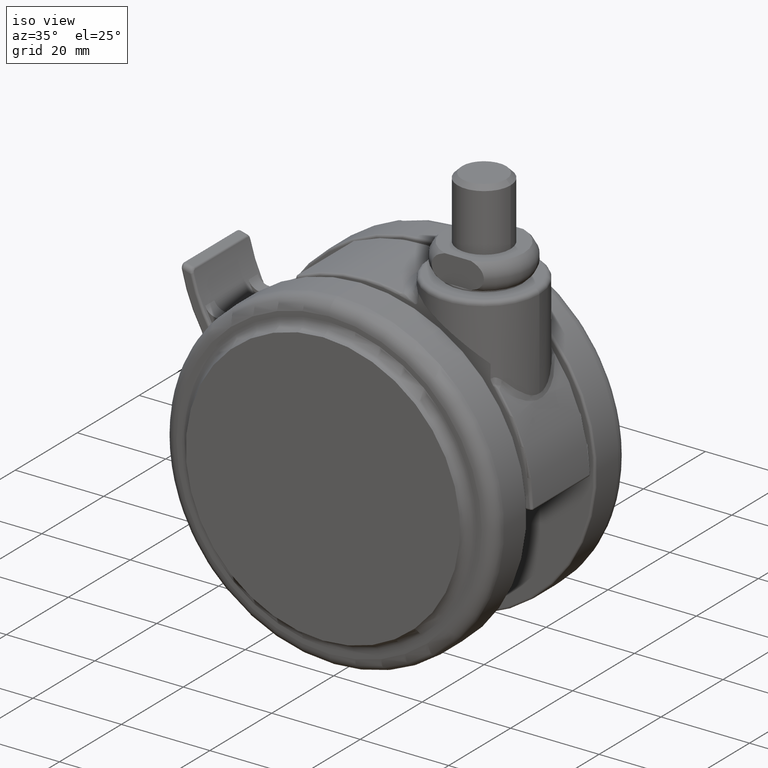
[diagram: clean part render]
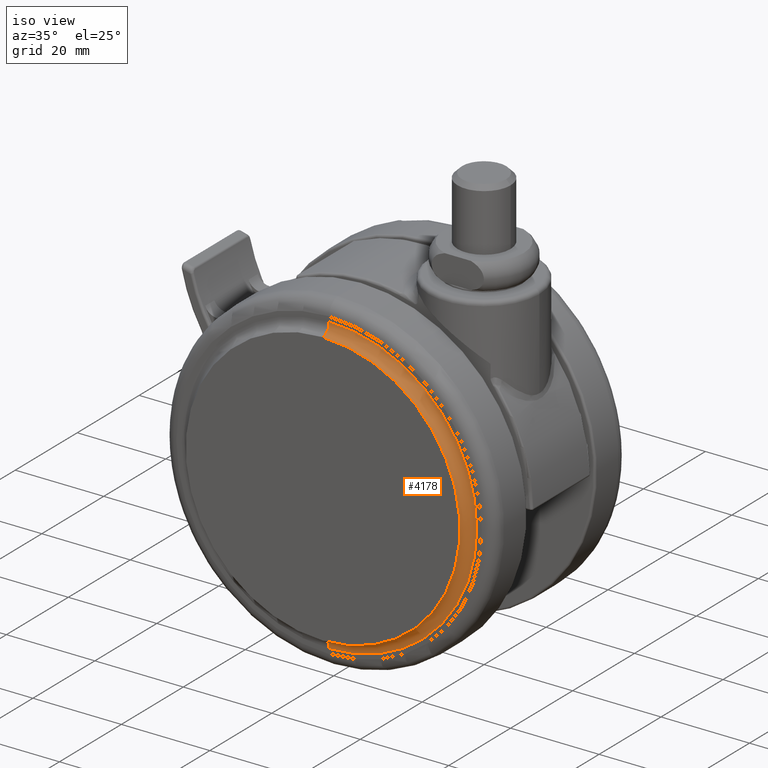
[diagram: same view with one face highlighted and labeled with its STEP entity id]
A machine part, iso view. The second image highlights one B-rep face of the part: STEP entity #4178.
In plain terms, the highlighted toroidal blend (fillet) surface has major radius 33.1916 mm and minor (blend) radius 2.2 mm.
Its self-contained STEP definition (entity closure, byte-faithful):
#410 = DIRECTION ( 'NONE',  ( 0.0000000000000000000, -1.000000000000000000, 0.0000000000000000000 ) ) ;
#473 = DIRECTION ( 'NONE',  ( 0.0000000000000000000, 0.0000000000000000000, -1.000000000000000000 ) ) ;
#574 = CARTESIAN_POINT ( 'NONE',  ( -20.00000000000000000, -23.50000000000000000, -71.50000000000001400 ) ) ;
#1353 = VERTEX_POINT ( 'NONE', #5377 ) ;
#1402 = DIRECTION ( 'NONE',  ( -1.000000000000000000, -0.0000000000000000000, -0.0000000000000000000 ) ) ;
#1585 = ORIENTED_EDGE ( 'NONE', *, *, #3164, .F. ) ;
#1916 = CARTESIAN_POINT ( 'NONE',  ( -20.00000000000000000, -23.69163752878120000, -40.50000000000000000 ) ) ;
#2329 = EDGE_CURVE ( 'NONE', #3625, #1353, #7410, .T. ) ;
#2344 = TOROIDAL_SURFACE ( 'NONE', #3407, 33.19163752878149900, 2.200000000000000200 ) ;
#2396 = ORIENTED_EDGE ( 'NONE', *, *, #7566, .T. ) ;
#3164 = EDGE_CURVE ( 'NONE', #1353, #3508, #5756, .T. ) ;
#3286 = DIRECTION ( 'NONE',  ( 0.0000000000000000000, -1.000000000000000000, 0.0000000000000000000 ) ) ;
#3299 = CARTESIAN_POINT ( 'NONE',  ( -20.00000000000000000, -21.50000000000000000, -73.88327505756382200 ) ) ;
#3407 = AXIS2_PLACEMENT_3D ( 'NONE', #1916, #3286, #5341 ) ;
#3508 = VERTEX_POINT ( 'NONE', #8416 ) ;
#3615 = VERTEX_POINT ( 'NONE', #3299 ) ;
#3625 = VERTEX_POINT ( 'NONE', #574 ) ;
#4001 = DIRECTION ( 'NONE',  ( 1.000000000000000000, 0.0000000000000000000, -1.224646799147353200E-016 ) ) ;
#4124 = FACE_OUTER_BOUND ( 'NONE', #6129, .T. ) ;
#4178 = ADVANCED_FACE ( 'NONE', ( #4124 ), #2344, .F. ) ;
#4444 = ORIENTED_EDGE ( 'NONE', *, *, #5381, .T. ) ;
#4479 = CARTESIAN_POINT ( 'NONE',  ( -20.00000000000000000, -21.50000000000000000, -40.50000000000000000 ) ) ;
#4526 = DIRECTION ( 'NONE',  ( 0.0000000000000000000, -1.000000000000000000, 0.0000000000000000000 ) ) ;
#4992 = AXIS2_PLACEMENT_3D ( 'NONE', #4479, #410, #5164 ) ;
#5164 = DIRECTION ( 'NONE',  ( 0.0000000000000000000, 0.0000000000000000000, -1.000000000000000000 ) ) ;
#5341 = DIRECTION ( 'NONE',  ( 0.0000000000000000000, 0.0000000000000000000, -1.000000000000000000 ) ) ;
#5377 = CARTESIAN_POINT ( 'NONE',  ( -19.99999999999999600, -23.50000000000000000, -9.500000000000001800 ) ) ;
#5381 = EDGE_CURVE ( 'NONE', #3625, #3615, #8658, .T. ) ;
#5476 = CARTESIAN_POINT ( 'NONE',  ( -20.00000000000000000, -23.69163752878120000, -73.69163752878149900 ) ) ;
#5756 = CIRCLE ( 'NONE', #6159, 2.200000000000000600 ) ;
#6129 = EDGE_LOOP ( 'NONE', ( #1585, #8246, #4444, #2396 ) ) ;
#6141 = DIRECTION ( 'NONE',  ( 0.0000000000000000000, 0.0000000000000000000, 1.000000000000000000 ) ) ;
#6159 = AXIS2_PLACEMENT_3D ( 'NONE', #8029, #4001, #8703 ) ;
#6381 = AXIS2_PLACEMENT_3D ( 'NONE', #5476, #1402, #6141 ) ;
#7361 = AXIS2_PLACEMENT_3D ( 'NONE', #8558, #4526, #473 ) ;
#7410 = CIRCLE ( 'NONE', #7361, 31.00000000000000700 ) ;
#7566 = EDGE_CURVE ( 'NONE', #3615, #3508, #7704, .T. ) ;
#7704 = CIRCLE ( 'NONE', #4992, 33.38327505756375800 ) ;
#8029 = CARTESIAN_POINT ( 'NONE',  ( -19.99999999999999600, -23.69163752878120000, -7.308362471218500500 ) ) ;
#8246 = ORIENTED_EDGE ( 'NONE', *, *, #2329, .F. ) ;
#8416 = CARTESIAN_POINT ( 'NONE',  ( -19.99999999999999600, -21.50000000000000000, -7.116724942436178500 ) ) ;
#8558 = CARTESIAN_POINT ( 'NONE',  ( -20.00000000000000000, -23.50000000000000000, -40.50000000000000000 ) ) ;
#8658 = CIRCLE ( 'NONE', #6381, 2.199999999999993500 ) ;
#8703 = DIRECTION ( 'NONE',  ( 0.0000000000000000000, 0.0000000000000000000, -1.000000000000000000 ) ) ;